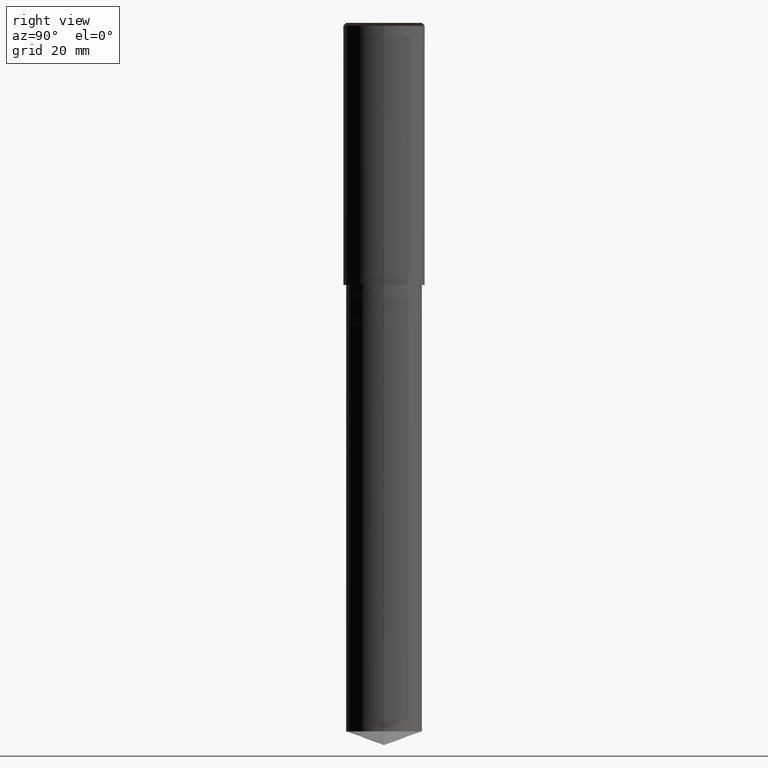
[diagram: clean part render]
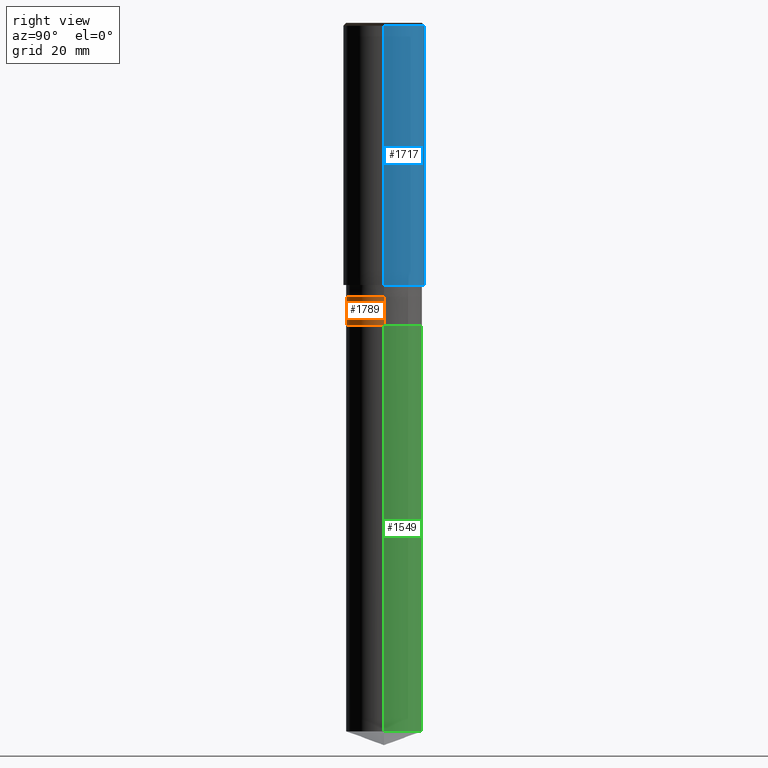
[diagram: same view with three faces highlighted in distinct colors, each labeled with its STEP entity id]
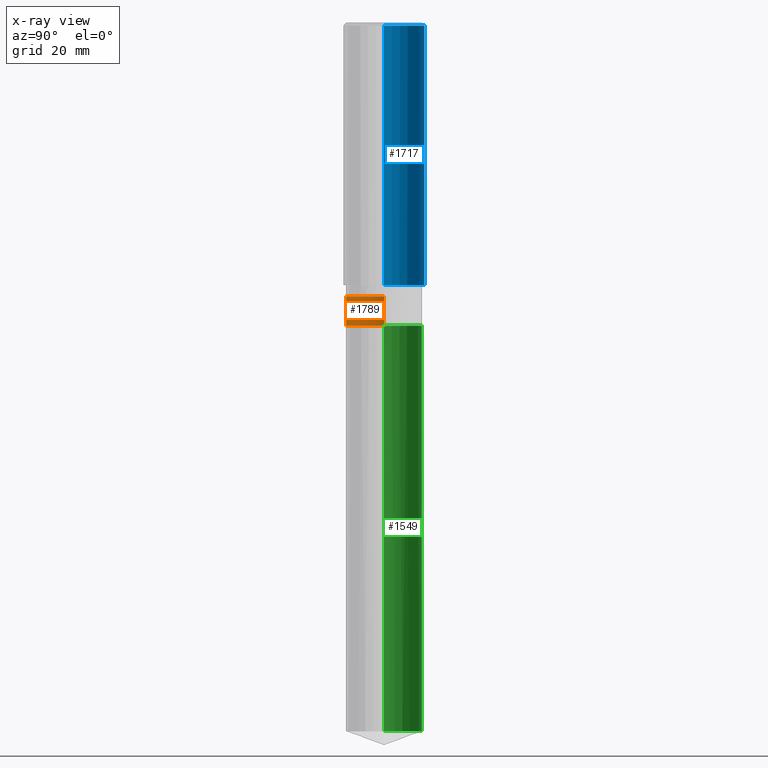
[diagram: x-ray of the same camera — body ghosted, the three highlighted faces saturated]
A machine part, right view with three faces highlighted in distinct colors.
The next image is the same camera in x-ray (body ghosted, the three faces saturated) — at least one of them is partly hidden behind the body in this view.
Their STEP definitions:

[orange] entity #1789 — the highlighted face is a freeform B-spline surface patch.
#1456=CARTESIAN_POINT('',(6.5,0.0,-7.0));
#1460=CARTESIAN_POINT('',(-6.5,0.0,-7.0));
#1465=CARTESIAN_POINT('',(-6.5,-6.5,-7.0));
#1466=CARTESIAN_POINT('',(0.0,-6.5,-7.0));
#1467=CARTESIAN_POINT('',(6.5,-6.5,-7.0));
#1468=CARTESIAN_POINT('',(6.5,0.0,-2.0));
#1472=CARTESIAN_POINT('',(-6.5,0.0,-2.0));
#1494=CARTESIAN_POINT('',(-6.5,-6.5,-2.0));
#1495=CARTESIAN_POINT('',(0.0,-6.5,-2.0));
#1496=CARTESIAN_POINT('',(6.5,-6.5,-2.0));
#1770=(
BOUNDED_SURFACE()
B_SPLINE_SURFACE(1,2,(
(#1460,#1465,#1466,#1467,#1456),
(#1472,#1494,#1495,#1496,#1468)
), .UNSPECIFIED.,.F.,.F.,.F.)
B_SPLINE_SURFACE_WITH_KNOTS((2,2),(3,2,3),(
0.0,1.0),(
0.0,0.5,1.0), .UNSPECIFIED.)
GEOMETRIC_REPRESENTATION_ITEM()
RATIONAL_B_SPLINE_SURFACE(((1.0,0.707106781187,1.0,0.707106781187,1.0),
(1.0,0.707106781187,1.0,0.707106781187,1.0)
))
REPRESENTATION_ITEM('')
SURFACE()
);
#1771=(
BOUNDED_CURVE()
B_SPLINE_CURVE(2,(#1456,#1467,#1466,#1465,#1460),.UNSPECIFIED.,.F.,.F.)
B_SPLINE_CURVE_WITH_KNOTS((3,2,3),
(0.0,0.5,1.0),.UNSPECIFIED.)
CURVE()
GEOMETRIC_REPRESENTATION_ITEM()
RATIONAL_B_SPLINE_CURVE((1.0,0.707106781187,1.0,0.707106781187,1.0))
REPRESENTATION_ITEM('')
);
#1772=(
BOUNDED_CURVE()
B_SPLINE_CURVE(1,(#1460,#1472),.UNSPECIFIED.,.F.,.F.)
B_SPLINE_CURVE_WITH_KNOTS((2,2),
(0.0,1.0),.UNSPECIFIED.)
CURVE()
GEOMETRIC_REPRESENTATION_ITEM()
RATIONAL_B_SPLINE_CURVE((1.0,1.0))
REPRESENTATION_ITEM('')
);
#1773=(
BOUNDED_CURVE()
B_SPLINE_CURVE(2,(#1472,#1494,#1495,#1496,#1468),.UNSPECIFIED.,.F.,.F.)
B_SPLINE_CURVE_WITH_KNOTS((3,2,3),
(0.0,0.5,1.0),.UNSPECIFIED.)
CURVE()
GEOMETRIC_REPRESENTATION_ITEM()
RATIONAL_B_SPLINE_CURVE((1.0,0.707106781187,1.0,0.707106781187,1.0))
REPRESENTATION_ITEM('')
);
#1774=(
BOUNDED_CURVE()
B_SPLINE_CURVE(1,(#1468,#1456),.UNSPECIFIED.,.F.,.F.)
B_SPLINE_CURVE_WITH_KNOTS((2,2),
(0.0,1.0),.UNSPECIFIED.)
CURVE()
GEOMETRIC_REPRESENTATION_ITEM()
RATIONAL_B_SPLINE_CURVE((1.0,1.0))
REPRESENTATION_ITEM('')
);
#1775=VERTEX_POINT('',#1456);
#1776=VERTEX_POINT('',#1460);
#1777=VERTEX_POINT('',#1468);
#1778=VERTEX_POINT('',#1472);
#1779=EDGE_CURVE('',#1775,#1776,#1771,.T.);
#1780=EDGE_CURVE('',#1776,#1778,#1772,.T.);
#1781=EDGE_CURVE('',#1778,#1777,#1773,.T.);
#1782=EDGE_CURVE('',#1777,#1775,#1774,.T.);
#1783=ORIENTED_EDGE('',*,*,#1779,.T.);
#1784=ORIENTED_EDGE('',*,*,#1780,.T.);
#1785=ORIENTED_EDGE('',*,*,#1781,.T.);
#1786=ORIENTED_EDGE('',*,*,#1782,.T.);
#1787=EDGE_LOOP('',(#1783,#1784,#1785,#1786));
#1788=FACE_OUTER_BOUND('',#1787,.T.);
#1789=ADVANCED_FACE('',(#1788),#1770,.T.);

[blue] entity #1717 — the highlighted face is a freeform B-spline surface patch.
#1478=CARTESIAN_POINT('',(7.0,0.0,0.0));
#1479=CARTESIAN_POINT('',(7.0,7.0,0.0));
#1480=CARTESIAN_POINT('',(0.0,7.0,0.0));
#1481=CARTESIAN_POINT('',(-7.0,7.0,0.0));
#1482=CARTESIAN_POINT('',(-7.0,0.0,0.0));
#1483=CARTESIAN_POINT('',(7.0,0.0,44.5));
#1484=CARTESIAN_POINT('',(7.0,7.0,44.5));
#1485=CARTESIAN_POINT('',(0.0,7.0,44.5));
#1486=CARTESIAN_POINT('',(-7.0,7.0,44.5));
#1487=CARTESIAN_POINT('',(-7.0,0.0,44.5));
#1698=(
BOUNDED_SURFACE()
B_SPLINE_SURFACE(1,2,(
(#1478,#1479,#1480,#1481,#1482),
(#1483,#1484,#1485,#1486,#1487)
), .UNSPECIFIED.,.F.,.F.,.F.)
B_SPLINE_SURFACE_WITH_KNOTS((2,2),(3,2,3),(
0.0,1.0),(
0.0,0.5,1.0), .UNSPECIFIED.)
GEOMETRIC_REPRESENTATION_ITEM()
RATIONAL_B_SPLINE_SURFACE(((1.0,0.707106781187,1.0,0.707106781187,1.0),
(1.0,0.707106781187,1.0,0.707106781187,1.0)
))
REPRESENTATION_ITEM('')
SURFACE()
);
#1699=(
BOUNDED_CURVE()
B_SPLINE_CURVE(2,(#1482,#1481,#1480,#1479,#1478),.UNSPECIFIED.,.F.,.F.)
B_SPLINE_CURVE_WITH_KNOTS((3,2,3),
(0.0,0.5,1.0),.UNSPECIFIED.)
CURVE()
GEOMETRIC_REPRESENTATION_ITEM()
RATIONAL_B_SPLINE_CURVE((1.0,0.707106781187,1.0,0.707106781187,1.0))
REPRESENTATION_ITEM('')
);
#1700=(
BOUNDED_CURVE()
B_SPLINE_CURVE(1,(#1478,#1483),.UNSPECIFIED.,.F.,.F.)
B_SPLINE_CURVE_WITH_KNOTS((2,2),
(0.0,1.0),.UNSPECIFIED.)
CURVE()
GEOMETRIC_REPRESENTATION_ITEM()
RATIONAL_B_SPLINE_CURVE((1.0,1.0))
REPRESENTATION_ITEM('')
);
#1701=(
BOUNDED_CURVE()
B_SPLINE_CURVE(2,(#1483,#1484,#1485,#1486,#1487),.UNSPECIFIED.,.F.,.F.)
B_SPLINE_CURVE_WITH_KNOTS((3,2,3),
(0.0,0.5,1.0),.UNSPECIFIED.)
CURVE()
GEOMETRIC_REPRESENTATION_ITEM()
RATIONAL_B_SPLINE_CURVE((1.0,0.707106781187,1.0,0.707106781187,1.0))
REPRESENTATION_ITEM('')
);
#1702=(
BOUNDED_CURVE()
B_SPLINE_CURVE(1,(#1487,#1482),.UNSPECIFIED.,.F.,.F.)
B_SPLINE_CURVE_WITH_KNOTS((2,2),
(0.0,1.0),.UNSPECIFIED.)
CURVE()
GEOMETRIC_REPRESENTATION_ITEM()
RATIONAL_B_SPLINE_CURVE((1.0,1.0))
REPRESENTATION_ITEM('')
);
#1703=VERTEX_POINT('',#1478);
#1704=VERTEX_POINT('',#1482);
#1705=VERTEX_POINT('',#1483);
#1706=VERTEX_POINT('',#1487);
#1707=EDGE_CURVE('',#1704,#1703,#1699,.T.);
#1708=EDGE_CURVE('',#1703,#1705,#1700,.T.);
#1709=EDGE_CURVE('',#1705,#1706,#1701,.T.);
#1710=EDGE_CURVE('',#1706,#1704,#1702,.T.);
#1711=ORIENTED_EDGE('',*,*,#1707,.T.);
#1712=ORIENTED_EDGE('',*,*,#1708,.T.);
#1713=ORIENTED_EDGE('',*,*,#1709,.T.);
#1714=ORIENTED_EDGE('',*,*,#1710,.T.);
#1715=EDGE_LOOP('',(#1711,#1712,#1713,#1714));
#1716=FACE_OUTER_BOUND('',#1715,.T.);
#1717=ADVANCED_FACE('',(#1716),#1698,.T.);

[green] entity #1549 — the highlighted face is a freeform B-spline surface patch.
#1451=CARTESIAN_POINT('',(6.5,0.0,-76.63419347727));
#1452=CARTESIAN_POINT('',(6.5,6.5,-76.63419347727));
#1453=CARTESIAN_POINT('',(0.0,6.5,-76.63419347727));
#1454=CARTESIAN_POINT('',(-6.5,6.5,-76.63419347727));
#1455=CARTESIAN_POINT('',(-6.5,0.0,-76.63419347727));
#1456=CARTESIAN_POINT('',(6.5,0.0,-7.0));
#1457=CARTESIAN_POINT('',(6.5,6.5,-7.0));
#1458=CARTESIAN_POINT('',(0.0,6.5,-7.0));
#1459=CARTESIAN_POINT('',(-6.5,6.5,-7.0));
#1460=CARTESIAN_POINT('',(-6.5,0.0,-7.0));
#1530=(
BOUNDED_SURFACE()
B_SPLINE_SURFACE(1,2,(
(#1451,#1452,#1453,#1454,#1455),
(#1456,#1457,#1458,#1459,#1460)
), .UNSPECIFIED.,.F.,.F.,.F.)
B_SPLINE_SURFACE_WITH_KNOTS((2,2),(3,2,3),(
0.0,1.0),(
0.0,0.5,1.0), .UNSPECIFIED.)
GEOMETRIC_REPRESENTATION_ITEM()
RATIONAL_B_SPLINE_SURFACE(((1.0,0.707106781187,1.0,0.707106781187,1.0),
(1.0,0.707106781187,1.0,0.707106781187,1.0)
))
REPRESENTATION_ITEM('')
SURFACE()
);
#1531=(
BOUNDED_CURVE()
B_SPLINE_CURVE(2,(#1455,#1454,#1453,#1452,#1451),.UNSPECIFIED.,.F.,.F.)
B_SPLINE_CURVE_WITH_KNOTS((3,2,3),
(0.0,0.5,1.0),.UNSPECIFIED.)
CURVE()
GEOMETRIC_REPRESENTATION_ITEM()
RATIONAL_B_SPLINE_CURVE((1.0,0.707106781187,1.0,0.707106781187,1.0))
REPRESENTATION_ITEM('')
);
#1532=(
BOUNDED_CURVE()
B_SPLINE_CURVE(1,(#1451,#1456),.UNSPECIFIED.,.F.,.F.)
B_SPLINE_CURVE_WITH_KNOTS((2,2),
(0.0,1.0),.UNSPECIFIED.)
CURVE()
GEOMETRIC_REPRESENTATION_ITEM()
RATIONAL_B_SPLINE_CURVE((1.0,1.0))
REPRESENTATION_ITEM('')
);
#1533=(
BOUNDED_CURVE()
B_SPLINE_CURVE(2,(#1456,#1457,#1458,#1459,#1460),.UNSPECIFIED.,.F.,.F.)
B_SPLINE_CURVE_WITH_KNOTS((3,2,3),
(0.0,0.5,1.0),.UNSPECIFIED.)
CURVE()
GEOMETRIC_REPRESENTATION_ITEM()
RATIONAL_B_SPLINE_CURVE((1.0,0.707106781187,1.0,0.707106781187,1.0))
REPRESENTATION_ITEM('')
);
#1534=(
BOUNDED_CURVE()
B_SPLINE_CURVE(1,(#1460,#1455),.UNSPECIFIED.,.F.,.F.)
B_SPLINE_CURVE_WITH_KNOTS((2,2),
(0.0,1.0),.UNSPECIFIED.)
CURVE()
GEOMETRIC_REPRESENTATION_ITEM()
RATIONAL_B_SPLINE_CURVE((1.0,1.0))
REPRESENTATION_ITEM('')
);
#1535=VERTEX_POINT('',#1451);
#1536=VERTEX_POINT('',#1455);
#1537=VERTEX_POINT('',#1456);
#1538=VERTEX_POINT('',#1460);
#1539=EDGE_CURVE('',#1536,#1535,#1531,.T.);
#1540=EDGE_CURVE('',#1535,#1537,#1532,.T.);
#1541=EDGE_CURVE('',#1537,#1538,#1533,.T.);
#1542=EDGE_CURVE('',#1538,#1536,#1534,.T.);
#1543=ORIENTED_EDGE('',*,*,#1539,.T.);
#1544=ORIENTED_EDGE('',*,*,#1540,.T.);
#1545=ORIENTED_EDGE('',*,*,#1541,.T.);
#1546=ORIENTED_EDGE('',*,*,#1542,.T.);
#1547=EDGE_LOOP('',(#1543,#1544,#1545,#1546));
#1548=FACE_OUTER_BOUND('',#1547,.T.);
#1549=ADVANCED_FACE('',(#1548),#1530,.T.);